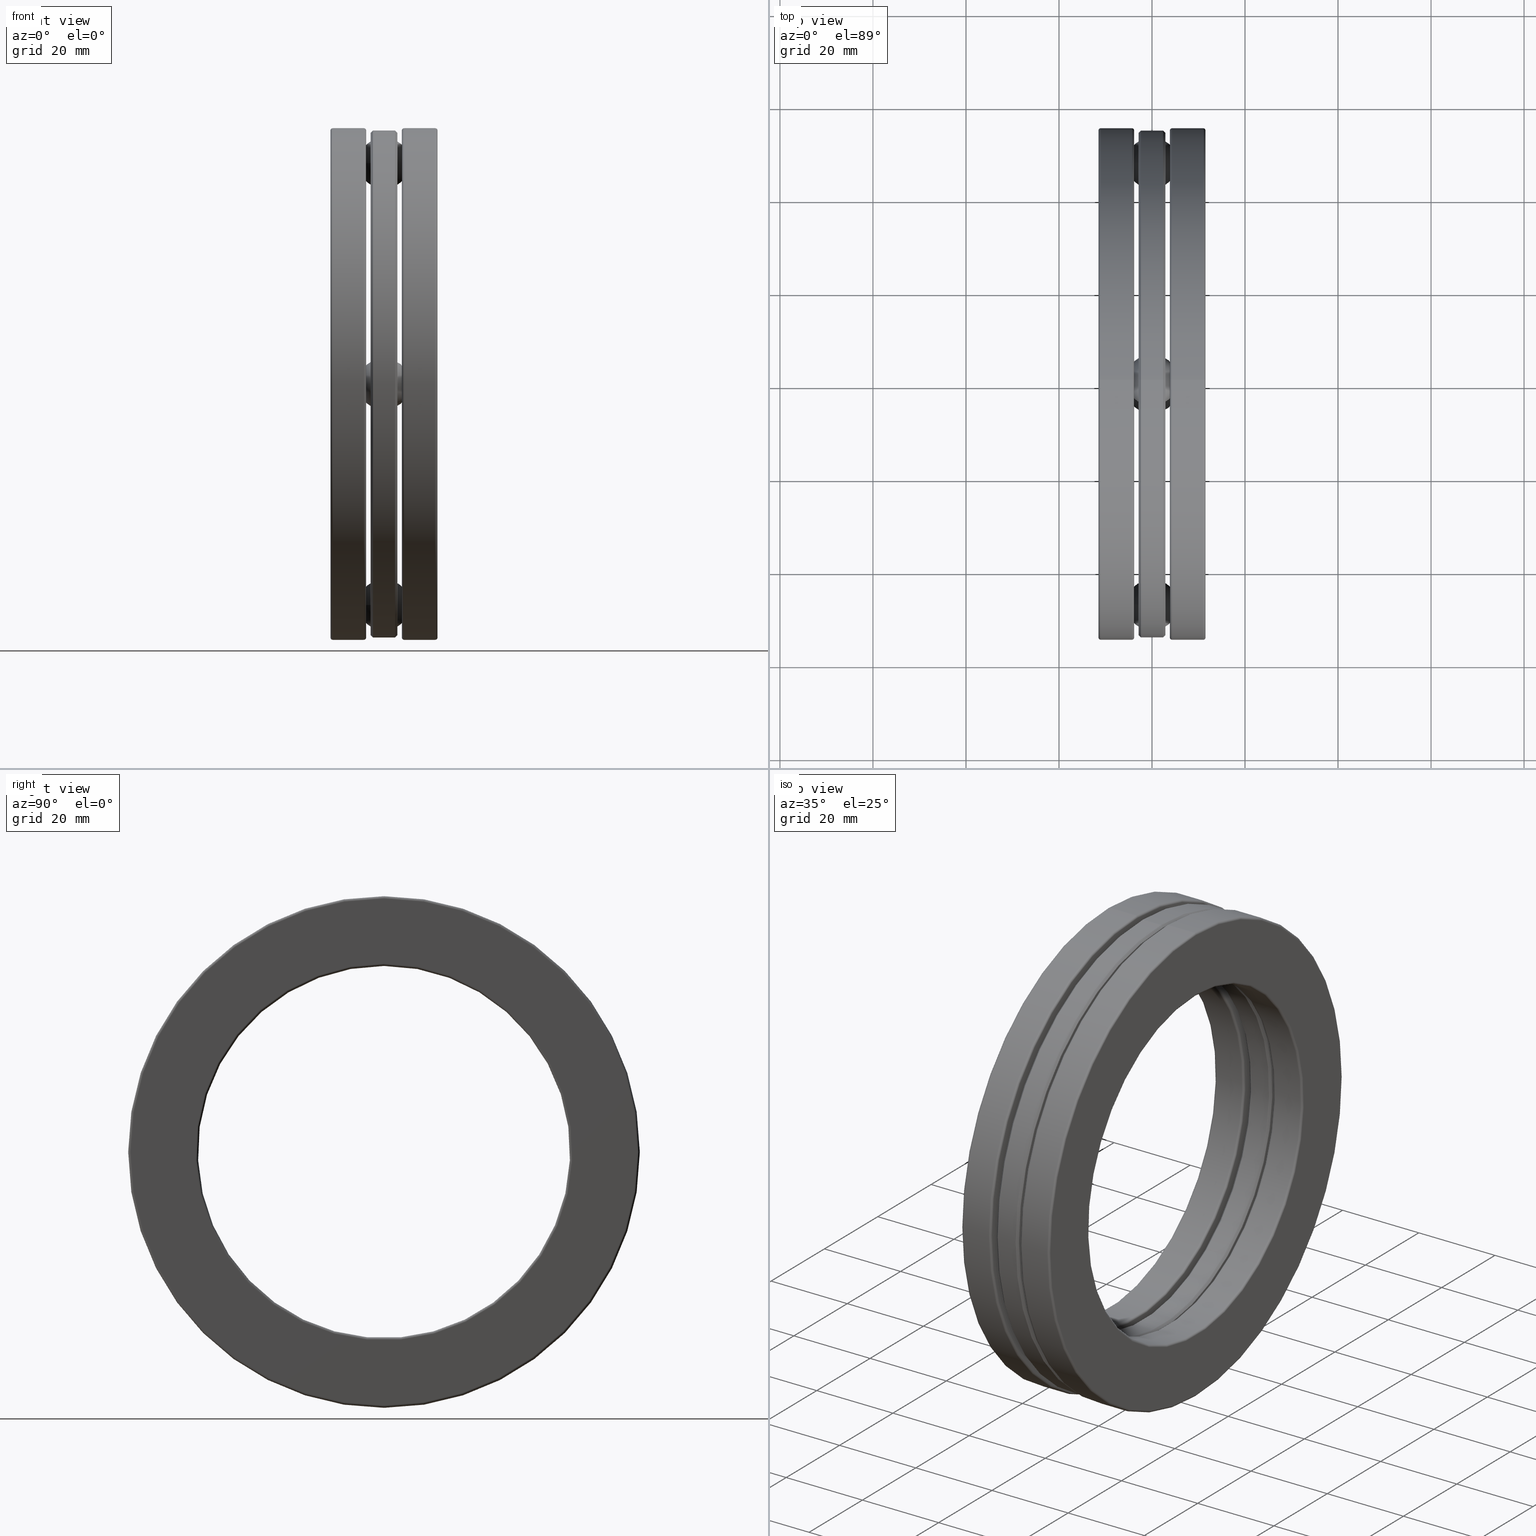
[diagram: canonical four-view strip — front | top / right | iso, engineering-drawing reading convention]
A machine part, canonical four-view strip (front | top / right | iso — engineering-drawing reading convention). The complete STEP part file that produces these views, byte-faithful:
ISO-10303-21;
HEADER;
FILE_DESCRIPTION (( 'STEP AP203' ),
    '1' );
FILE_NAME ('2916-ABB.step',
    '2017-03-07T16:43:08',
    ( '' ),
    ( '' ),
    'SwSTEP 2.0',
    'SolidWorks 2017',
    '' );
FILE_SCHEMA (( 'CONFIG_CONTROL_DESIGN' ));
ENDSEC;

DATA;
#1 = VERTEX_POINT ( 'NONE', #294 ) ;
#2 = EDGE_LOOP ( 'NONE', ( #406 ) ) ;
#3 = CALENDAR_DATE ( 2017, 7, 3 ) ;
#4 = DIRECTION ( 'NONE',  ( -1.000000000000000000, -0.0000000000000000000, -0.0000000000000000000 ) ) ;
#5 = EDGE_LOOP ( 'NONE', ( #228 ) ) ;
#6 = CLOSED_SHELL ( 'NONE', ( #647 ) ) ;
#7 = ADVANCED_FACE ( 'NONE', ( #489, #324 ), #598, .T. ) ;
#8 = CLOSED_SHELL ( 'NONE', ( #453, #729, #709, #36, #295, #790, #533, #573, #677, #27 ) ) ;
#9 = CARTESIAN_POINT ( 'NONE',  ( 0.0000000000000000000, 0.0000000000000000000, 0.0000000000000000000 ) ) ;
#10 = DIRECTION ( 'NONE',  ( -1.000000000000000000, 0.0000000000000000000, 0.0000000000000000000 ) ) ;
#11 = CARTESIAN_POINT ( 'NONE',  ( 1.095466440302333300E-016, 0.0000000000000000000, 0.0000000000000000000 ) ) ;
#12 = DIRECTION ( 'NONE',  ( 0.0000000000000000000, 0.0000000000000000000, 1.000000000000000000 ) ) ;
#13 = DIRECTION ( 'NONE',  ( -1.000000000000000000, -0.0000000000000000000, -0.0000000000000000000 ) ) ;
#14 = AXIS2_PLACEMENT_3D ( 'NONE', #370, #130, #263 ) ;
#15 = PERSON_AND_ORGANIZATION_ROLE ( 'creator' ) ;
#16 = CARTESIAN_POINT ( 'NONE',  ( 0.09325000000000002700, 0.0000000000000000000, 0.0000000000000000000 ) ) ;
#17 = DIRECTION ( 'NONE',  ( 0.0000000000000000000, 0.0000000000000000000, -1.000000000000000000 ) ) ;
#18 = APPROVAL_ROLE ( '' ) ;
#19 = ORIENTED_EDGE ( 'NONE', *, *, #113, .T. ) ;
#20 = LOCAL_TIME ( 11, 43, 8.000000000000000000, #184 ) ;
#21 = AXIS2_PLACEMENT_3D ( 'NONE', #251, #63, #642 ) ;
#22 = EDGE_LOOP ( 'NONE', ( #633 ) ) ;
#23 = CARTESIAN_POINT ( 'NONE',  ( -0.4529999999999999000, 0.0000000000000000000, 0.0000000000000000000 ) ) ;
#24 = CARTESIAN_POINT ( 'NONE',  ( 0.1132499999999999500, 0.0000000000000000000, 0.0000000000000000000 ) ) ;
#25 = EDGE_CURVE ( 'NONE', #222, #222, #256, .T. ) ;
#26 = CARTESIAN_POINT ( 'NONE',  ( -0.4329999999999999400, 0.0000000000000000000, 0.0000000000000000000 ) ) ;
#27 = ADVANCED_FACE ( 'NONE', ( #215, #700 ), #562, .T. ) ;
#28 = ADVANCED_FACE ( 'NONE', ( #423, #161, #807, #528, #376, #508 ), #443, .F. ) ;
#29 = CARTESIAN_POINT ( 'NONE',  ( -0.09325000000000002700, 0.0000000000000000000, 0.0000000000000000000 ) ) ;
#30 = VERTEX_POINT ( 'NONE', #98 ) ;
#31 = ORIENTED_EDGE ( 'NONE', *, *, #72, .T. ) ;
#32 = DIRECTION ( 'NONE',  ( 1.000000000000000000, 0.0000000000000000000, 0.0000000000000000000 ) ) ;
#33 = FACE_OUTER_BOUND ( 'NONE', #787, .T. ) ;
#34 = EDGE_LOOP ( 'NONE', ( #663 ) ) ;
#35 = CARTESIAN_POINT ( 'NONE',  ( 0.1132500000000000200, -1.870250000000000200, 0.2240000000000005300 ) ) ;
#36 = ADVANCED_FACE ( 'NONE', ( #229, #716 ), #521, .T. ) ;
#37 = AXIS2_PLACEMENT_3D ( 'NONE', #820, #438, #768 ) ;
#38 = DIRECTION ( 'NONE',  ( 0.0000000000000000000, 0.0000000000000000000, -1.000000000000000000 ) ) ;
#39 = DIRECTION ( 'NONE',  ( -1.000000000000000000, -0.0000000000000000000, -0.0000000000000000000 ) ) ;
#40 = CARTESIAN_POINT ( 'NONE',  ( -0.09324999999999995800, 0.0000000000000000000, 1.595000000000000000 ) ) ;
#41 = CARTESIAN_POINT ( 'NONE',  ( 1.095466440302333300E-016, 1.958982892191411200E-014, 1.870250000000000200 ) ) ;
#42 = AXIS2_PLACEMENT_3D ( 'NONE', #208, #32, #207 ) ;
#43 = CIRCLE ( 'NONE', #559, 2.028866165477796600 ) ;
#44 = ORIENTED_EDGE ( 'NONE', *, *, #232, .T. ) ;
#45 = FACE_BOUND ( 'NONE', #746, .T. ) ;
#46 = APPROVAL_PERSON_ORGANIZATION ( #740, #95, #375 ) ;
#47 =( GEOMETRIC_REPRESENTATION_CONTEXT ( 3 ) GLOBAL_UNCERTAINTY_ASSIGNED_CONTEXT ( ( #85 ) ) GLOBAL_UNIT_ASSIGNED_CONTEXT ( ( #620, #240, #442 ) ) REPRESENTATION_CONTEXT ( 'NONE', 'WORKASPACE' ) );
#48 = AXIS2_PLACEMENT_3D ( 'NONE', #273, #459, #203 ) ;
#49 = VERTEX_POINT ( 'NONE', #668 ) ;
#50 = CIRCLE ( 'NONE', #379, 1.595000000000000400 ) ;
#51 = EDGE_LOOP ( 'NONE', ( #594 ) ) ;
#52 = EDGE_LOOP ( 'NONE', ( #759 ) ) ;
#53 = CARTESIAN_POINT ( 'NONE',  ( -0.1132499999999999500, 0.2240000000000201300, 1.870249999999998000 ) ) ;
#54 = AXIS2_PLACEMENT_3D ( 'NONE', #318, #764, #635 ) ;
#55 = VERTEX_POINT ( 'NONE', #35 ) ;
#56 = TOROIDAL_SURFACE ( 'NONE', #329, 2.145500000000000600, 0.01999999999999968500 ) ;
#57 = DATE_AND_TIME ( #3, #224 ) ;
#58 = TOROIDAL_SURFACE ( 'NONE', #304, 2.145500000000000600, 0.02000000000000004200 ) ;
#59 = DIRECTION ( 'NONE',  ( 0.0000000000000000000, 0.0000000000000000000, 1.000000000000000000 ) ) ;
#60 = AXIS2_PLACEMENT_3D ( 'NONE', #711, #480, #514 ) ;
#61 = AXIS2_PLACEMENT_3D ( 'NONE', #183, #495, #629 ) ;
#62 = DIRECTION ( 'NONE',  ( -1.000000000000000000, -0.0000000000000000000, -0.0000000000000000000 ) ) ;
#63 = DIRECTION ( 'NONE',  ( -1.000000000000000000, -0.0000000000000000000, -0.0000000000000000000 ) ) ;
#64 = CIRCLE ( 'NONE', #167, 2.145500000000000200 ) ;
#65 = ORIENTED_EDGE ( 'NONE', *, *, #25, .F. ) ;
#66 = DIRECTION ( 'NONE',  ( 1.000000000000000000, 0.0000000000000000000, 0.0000000000000000000 ) ) ;
#67 = CIRCLE ( 'NONE', #143, 1.711633834522203700 ) ;
#68 = CARTESIAN_POINT ( 'NONE',  ( -0.1132499999999999500, 1.958982892191411200E-014, 1.870250000000000200 ) ) ;
#69 = ORIENTED_EDGE ( 'NONE', *, *, #602, .F. ) ;
#70 = DIRECTION ( 'NONE',  ( 0.0000000000000000000, 0.0000000000000000000, -1.000000000000000000 ) ) ;
#71 = CARTESIAN_POINT ( 'NONE',  ( 0.1510030200000006500, 0.0000000000000000000, 0.0000000000000000000 ) ) ;
#72 = EDGE_CURVE ( 'NONE', #472, #472, #735, .T. ) ;
#73 = DIRECTION ( 'NONE',  ( 0.0000000000000000000, 0.0000000000000000000, 1.000000000000000000 ) ) ;
#74 = AXIS2_PLACEMENT_3D ( 'NONE', #412, #169, #479 ) ;
#75 = ORIENTED_EDGE ( 'NONE', *, *, #628, .F. ) ;
#76 = CIRCLE ( 'NONE', #493, 0.2240000000000005300 ) ;
#77 = PERSON_AND_ORGANIZATION ( #302, #121 ) ;
#78 = EDGE_LOOP ( 'NONE', ( #666 ) ) ;
#79 = DIRECTION ( 'NONE',  ( 1.000000000000000000, 0.0000000000000000000, 0.0000000000000000000 ) ) ;
#80 = CIRCLE ( 'NONE', #90, 0.2240000000000005300 ) ;
#81 = CLOSED_SHELL ( 'NONE', ( #592 ) ) ;
#82 = ORIENTED_EDGE ( 'NONE', *, *, #577, .F. ) ;
#83 = DIRECTION ( 'NONE',  ( 0.0000000000000000000, 0.0000000000000000000, 1.000000000000000000 ) ) ;
#84 = CARTESIAN_POINT ( 'NONE',  ( 0.4530000000000001200, 0.0000000000000000000, 0.0000000000000000000 ) ) ;
#85 = UNCERTAINTY_MEASURE_WITH_UNIT (LENGTH_MEASURE( 1.000000000000000100E-005 ), #620, 'distance_accuracy_value', 'NONE');
#86 = DIRECTION ( 'NONE',  ( -1.000000000000000000, -0.0000000000000000000, -0.0000000000000000000 ) ) ;
#87 = EDGE_LOOP ( 'NONE', ( #569 ) ) ;
#88 = CIRCLE ( 'NONE', #210, 2.145500000000000200 ) ;
#89 = CLOSED_SHELL ( 'NONE', ( #164, #498, #470, #600, #591, #725, #651, #801, #342, #397 ) ) ;
#90 = AXIS2_PLACEMENT_3D ( 'NONE', #571, #4, #578 ) ;
#91 = EDGE_LOOP ( 'NONE', ( #751 ) ) ;
#92 = ORIENTED_EDGE ( 'NONE', *, *, #160, .F. ) ;
#93 = CARTESIAN_POINT ( 'NONE',  ( 0.0000000000000000000, 0.0000000000000000000, 0.0000000000000000000 ) ) ;
#94 = DIRECTION ( 'NONE',  ( -1.000000000000000000, -0.0000000000000000000, -0.0000000000000000000 ) ) ;
#95 = APPROVAL ( #691, 'UNSPECIFIED' ) ;
#96 = ADVANCED_FACE ( 'NONE', ( #784, #292 ), #806, .T. ) ;
#97 = DIRECTION ( 'NONE',  ( -1.000000000000000000, -0.0000000000000000000, -0.0000000000000000000 ) ) ;
#98 = CARTESIAN_POINT ( 'NONE',  ( -0.1710030199999997800, 0.0000000000000000000, 2.165500000000000600 ) ) ;
#99 = DIRECTION ( 'NONE',  ( 0.0000000000000000000, 0.0000000000000000000, 1.000000000000000000 ) ) ;
#100 = VERTEX_POINT ( 'NONE', #793 ) ;
#101 = COORDINATED_UNIVERSAL_TIME_OFFSET ( 5, 0, .BEHIND. ) ;
#102 = CIRCLE ( 'NONE', #731, 2.145500000000000600 ) ;
#103 = ORIENTED_EDGE ( 'NONE', *, *, #454, .T. ) ;
#104 = AXIS2_PLACEMENT_3D ( 'NONE', #322, #62, #766 ) ;
#105 = AXIS2_PLACEMENT_3D ( 'NONE', #9, #191, #449 ) ;
#106 = AXIS2_PLACEMENT_3D ( 'NONE', #261, #200, #648 ) ;
#107 = VERTEX_POINT ( 'NONE', #364 ) ;
#108 = EDGE_LOOP ( 'NONE', ( #336 ) ) ;
#109 = FACE_OUTER_BOUND ( 'NONE', #687, .T. ) ;
#110 = ORIENTED_EDGE ( 'NONE', *, *, #374, .T. ) ;
#111 = EDGE_LOOP ( 'NONE', ( #75 ) ) ;
#112 = CARTESIAN_POINT ( 'NONE',  ( -0.4529999999999999000, 0.0000000000000000000, 2.145500000000001100 ) ) ;
#113 = EDGE_CURVE ( 'NONE', #55, #55, #607, .T. ) ;
#114 = MANIFOLD_SOLID_BREP ( 'Revolve4', #481 ) ;
#115 = ORIENTED_EDGE ( 'NONE', *, *, #741, .T. ) ;
#116 = FACE_OUTER_BOUND ( 'NONE', #174, .T. ) ;
#117 = CARTESIAN_POINT ( 'NONE',  ( -0.4329999999999999400, 0.0000000000000000000, 2.165500000000000600 ) ) ;
#118 = FACE_BOUND ( 'NONE', #34, .T. ) ;
#119 = AXIS2_PLACEMENT_3D ( 'NONE', #532, #611, #289 ) ;
#120 = DIRECTION ( 'NONE',  ( 0.0000000000000000000, 0.0000000000000000000, 1.000000000000000000 ) ) ;
#121 = ORGANIZATION ( 'UNSPECIFIED', 'UNSPECIFIED', '' ) ;
#122 = CIRCLE ( 'NONE', #106, 0.2240000000000005300 ) ;
#123 = EDGE_LOOP ( 'NONE', ( #775 ) ) ;
#124 = DIRECTION ( 'NONE',  ( 0.0000000000000000000, 0.0000000000000000000, 1.000000000000000000 ) ) ;
#125 = AXIS2_PLACEMENT_3D ( 'NONE', #286, #166, #99 ) ;
#126 = AXIS2_PLACEMENT_3D ( 'NONE', #320, #695, #127 ) ;
#127 = DIRECTION ( 'NONE',  ( 0.0000000000000000000, 0.0000000000000000000, -1.000000000000000000 ) ) ;
#128 = DIRECTION ( 'NONE',  ( 0.0000000000000000000, 0.0000000000000000000, -1.000000000000000000 ) ) ;
#129 = DIRECTION ( 'NONE',  ( 0.0000000000000000000, -1.000000000000000000, 3.658724991514629800E-015 ) ) ;
#130 = DIRECTION ( 'NONE',  ( -1.000000000000000000, -0.0000000000000000000, -0.0000000000000000000 ) ) ;
#131 = DIRECTION ( 'NONE',  ( -1.000000000000000000, -0.0000000000000000000, -0.0000000000000000000 ) ) ;
#132 = DIRECTION ( 'NONE',  ( 1.000000000000000000, 0.0000000000000000000, 0.0000000000000000000 ) ) ;
#133 = PRODUCT ( '2916-ABB', '2916-ABB', '', ( #190 ) ) ;
#134 = DIRECTION ( 'NONE',  ( 0.0000000000000000000, 0.0000000000000000000, 1.000000000000000000 ) ) ;
#135 = CIRCLE ( 'NONE', #209, 1.594999999999999800 ) ;
#136 = FACE_OUTER_BOUND ( 'NONE', #632, .T. ) ;
#137 = COORDINATED_UNIVERSAL_TIME_OFFSET ( 5, 0, .BEHIND. ) ;
#138 = FACE_BOUND ( 'NONE', #359, .T. ) ;
#139 = ADVANCED_FACE ( 'NONE', ( #227, #760 ), #430, .F. ) ;
#140 = EDGE_LOOP ( 'NONE', ( #31 ) ) ;
#141 = ADVANCED_FACE ( 'NONE', ( ), #278, .T. ) ;
#142 = DIRECTION ( 'NONE',  ( -1.000000000000000000, -0.0000000000000000000, -0.0000000000000000000 ) ) ;
#143 = AXIS2_PLACEMENT_3D ( 'NONE', #515, #823, #134 ) ;
#144 = DIRECTION ( 'NONE',  ( 0.0000000000000000000, 0.0000000000000000000, 1.000000000000000000 ) ) ;
#145 = DIRECTION ( 'NONE',  ( 0.0000000000000000000, 0.0000000000000000000, 1.000000000000000000 ) ) ;
#146 = AXIS2_PLACEMENT_3D ( 'NONE', #189, #317, #195 ) ;
#147 = EDGE_CURVE ( 'NONE', #177, #177, #335, .T. ) ;
#148 = CIRCLE ( 'NONE', #523, 0.2240000000000005300 ) ;
#149 = ORIENTED_EDGE ( 'NONE', *, *, #355, .T. ) ;
#150 = TOROIDAL_SURFACE ( 'NONE', #338, 1.870250000000000200, 0.2190000000000000300 ) ;
#151 = EDGE_LOOP ( 'NONE', ( #487 ) ) ;
#152 = ORIENTED_EDGE ( 'NONE', *, *, #72, .F. ) ;
#153 = PERSON_AND_ORGANIZATION_ROLE ( 'classification_officer' ) ;
#154 = ADVANCED_FACE ( 'NONE', ( #475, #597 ), #813, .F. ) ;
#155 = DIRECTION ( 'NONE',  ( 0.0000000000000000000, 0.0000000000000000000, 1.000000000000000000 ) ) ;
#156 = ADVANCED_FACE ( 'NONE', ( #713, #743 ), #455, .F. ) ;
#157 = DIRECTION ( 'NONE',  ( -1.000000000000000000, -0.0000000000000000000, -0.0000000000000000000 ) ) ;
#158 = VERTEX_POINT ( 'NONE', #221 ) ;
#159 = CIRCLE ( 'NONE', #185, 2.028866165477796200 ) ;
#160 = EDGE_CURVE ( 'NONE', #708, #708, #753, .T. ) ;
#161 = FACE_BOUND ( 'NONE', #212, .T. ) ;
#162 = ORIENTED_EDGE ( 'NONE', *, *, #147, .F. ) ;
#163 = CARTESIAN_POINT ( 'NONE',  ( 1.095466440302333300E-016, -1.870250000000000200, 0.0000000000000000000 ) ) ;
#164 = ADVANCED_FACE ( 'NONE', ( #654, #673 ), #420, .F. ) ;
#165 = CARTESIAN_POINT ( 'NONE',  ( 0.4530000000000001200, 0.0000000000000000000, 1.595000000000000000 ) ) ;
#166 = DIRECTION ( 'NONE',  ( -1.000000000000000000, -0.0000000000000000000, -0.0000000000000000000 ) ) ;
#167 = AXIS2_PLACEMENT_3D ( 'NONE', #29, #97, #226 ) ;
#168 = CARTESIAN_POINT ( 'NONE',  ( 0.1132500000000000200, 1.958982892191411200E-014, 1.870250000000000200 ) ) ;
#169 = DIRECTION ( 'NONE',  ( -1.000000000000000000, -0.0000000000000000000, -0.0000000000000000000 ) ) ;
#170 = TOROIDAL_SURFACE ( 'NONE', #175, 1.594999999999999800, 0.01999999999999988900 ) ;
#171 = EDGE_LOOP ( 'NONE', ( #388 ) ) ;
#172 = FACE_OUTER_BOUND ( 'NONE', #22, .T. ) ;
#173 = EDGE_LOOP ( 'NONE', ( #149 ) ) ;
#174 = EDGE_LOOP ( 'NONE', ( #301 ) ) ;
#175 = AXIS2_PLACEMENT_3D ( 'NONE', #26, #403, #339 ) ;
#176 = AXIS2_PLACEMENT_3D ( 'NONE', #702, #381, #327 ) ;
#177 = VERTEX_POINT ( 'NONE', #720 ) ;
#178 = EDGE_LOOP ( 'NONE', ( #808 ) ) ;
#179 = SECURITY_CLASSIFICATION ( '', '', #461 ) ;
#180 = EDGE_LOOP ( 'NONE', ( #279 ) ) ;
#181 = EDGE_LOOP ( 'NONE', ( #334 ) ) ;
#182 = ORIENTED_EDGE ( 'NONE', *, *, #545, .T. ) ;
#183 = CARTESIAN_POINT ( 'NONE',  ( -0.1132499999999999500, 0.0000000000000000000, 0.0000000000000000000 ) ) ;
#184 = COORDINATED_UNIVERSAL_TIME_OFFSET ( 5, 0, .BEHIND. ) ;
#185 = AXIS2_PLACEMENT_3D ( 'NONE', #589, #525, #145 ) ;
#186 = EDGE_LOOP ( 'NONE', ( #817 ) ) ;
#187 = EDGE_CURVE ( 'NONE', #593, #593, #552, .T. ) ;
#188 = CARTESIAN_POINT ( 'NONE',  ( 0.0000000000000000000, 0.0000000000000000000, 0.0000000000000000000 ) ) ;
#189 = CARTESIAN_POINT ( 'NONE',  ( -0.1132500000000000500, 0.0000000000000000000, 0.0000000000000000000 ) ) ;
#190 = MECHANICAL_CONTEXT ( 'NONE', #510, 'mechanical' ) ;
#191 = DIRECTION ( 'NONE',  ( -1.000000000000000000, -0.0000000000000000000, -0.0000000000000000000 ) ) ;
#192 = VERTEX_POINT ( 'NONE', #413 ) ;
#193 = FACE_OUTER_BOUND ( 'NONE', #441, .T. ) ;
#194 = DATE_AND_TIME ( #583, #527 ) ;
#195 = DIRECTION ( 'NONE',  ( 0.0000000000000000000, 0.0000000000000000000, -1.000000000000000000 ) ) ;
#196 = EDGE_LOOP ( 'NONE', ( #182 ) ) ;
#197 = ORIENTED_EDGE ( 'NONE', *, *, #326, .T. ) ;
#198 = CARTESIAN_POINT ( 'NONE',  ( -0.1510030199999997900, 0.0000000000000000000, 0.0000000000000000000 ) ) ;
#199 = AXIS2_PLACEMENT_3D ( 'NONE', #507, #131, #502 ) ;
#200 = DIRECTION ( 'NONE',  ( 1.000000000000000000, -0.0000000000000000000, 0.0000000000000000000 ) ) ;
#201 = DIRECTION ( 'NONE',  ( 0.0000000000000000000, 0.0000000000000000000, 1.000000000000000000 ) ) ;
#202 = PLANE ( 'NONE',  #645 ) ;
#203 = DIRECTION ( 'NONE',  ( 0.0000000000000000000, -1.000000000000000000, 3.658724991514629800E-015 ) ) ;
#204 = CARTESIAN_POINT ( 'NONE',  ( 0.4330000000000008300, 0.0000000000000000000, 0.0000000000000000000 ) ) ;
#205 = FACE_BOUND ( 'NONE', #554, .T. ) ;
#206 = ORIENTED_EDGE ( 'NONE', *, *, #588, .T. ) ;
#207 = DIRECTION ( 'NONE',  ( 0.0000000000000000000, 1.000000000000000000, -1.097617497454388900E-014 ) ) ;
#208 = CARTESIAN_POINT ( 'NONE',  ( -0.4530393700787400700, 1.958982892191411200E-014, 1.870250000000000200 ) ) ;
#209 = AXIS2_PLACEMENT_3D ( 'NONE', #23, #718, #274 ) ;
#210 = AXIS2_PLACEMENT_3D ( 'NONE', #769, #517, #706 ) ;
#211 = FACE_OUTER_BOUND ( 'NONE', #173, .T. ) ;
#212 = EDGE_LOOP ( 'NONE', ( #366 ) ) ;
#213 = DIRECTION ( 'NONE',  ( 0.0000000000000000000, 0.0000000000000000000, 1.000000000000000000 ) ) ;
#214 = FACE_OUTER_BOUND ( 'NONE', #737, .T. ) ;
#215 = FACE_BOUND ( 'NONE', #181, .T. ) ;
#216 = ORIENTED_EDGE ( 'NONE', *, *, #741, .F. ) ;
#217 = EDGE_LOOP ( 'NONE', ( #257 ) ) ;
#218 = DIRECTION ( 'NONE',  ( 0.0000000000000000000, 0.0000000000000000000, 1.000000000000000000 ) ) ;
#219 = CC_DESIGN_DATE_AND_TIME_ASSIGNMENT ( #194, #596, ( #179 ) ) ;
#220 = CARTESIAN_POINT ( 'NONE',  ( 0.1510030200000006500, 0.0000000000000000000, 2.028866165477796200 ) ) ;
#221 = CARTESIAN_POINT ( 'NONE',  ( -0.1510030199999997900, 0.0000000000000000000, 1.595000000000000400 ) ) ;
#222 = VERTEX_POINT ( 'NONE', #265 ) ;
#223 = SPHERICAL_SURFACE ( 'NONE', #362, 0.2190000000000003100 ) ;
#224 = LOCAL_TIME ( 11, 43, 8.000000000000000000, #440 ) ;
#225 = ORIENTED_EDGE ( 'NONE', *, *, #524, .T. ) ;
#226 = DIRECTION ( 'NONE',  ( 0.0000000000000000000, 0.0000000000000000000, 1.000000000000000000 ) ) ;
#227 = FACE_OUTER_BOUND ( 'NONE', #293, .T. ) ;
#228 = ORIENTED_EDGE ( 'NONE', *, *, #560, .F. ) ;
#229 = FACE_OUTER_BOUND ( 'NONE', #424, .T. ) ;
#230 = DIRECTION ( 'NONE',  ( 0.0000000000000000000, 0.0000000000000000000, 1.000000000000000000 ) ) ;
#231 = AXIS2_PLACEMENT_3D ( 'NONE', #408, #94, #658 ) ;
#232 = EDGE_CURVE ( 'NONE', #192, #192, #776, .T. ) ;
#233 = MANIFOLD_SOLID_BREP ( 'Revolve1', #8 ) ;
#234 = CIRCLE ( 'NONE', #262, 0.2240000000000005300 ) ;
#235 = FACE_OUTER_BOUND ( 'NONE', #542, .T. ) ;
#236 = APPROVAL_PERSON_ORGANIZATION ( #566, #603, #779 ) ;
#237 = EDGE_LOOP ( 'NONE', ( #392 ) ) ;
#238 = ORIENTED_EDGE ( 'NONE', *, *, #494, .F. ) ;
#239 = EDGE_LOOP ( 'NONE', ( #580 ) ) ;
#240 =( NAMED_UNIT ( * ) PLANE_ANGLE_UNIT ( ) SI_UNIT ( $, .RADIAN. ) );
#241 = CARTESIAN_POINT ( 'NONE',  ( 0.0000000000000000000, 0.0000000000000000000, 0.0000000000000000000 ) ) ;
#242 = AXIS2_PLACEMENT_3D ( 'NONE', #818, #66, #690 ) ;
#243 = VERTEX_POINT ( 'NONE', #685 ) ;
#244 = AXIS2_PLACEMENT_3D ( 'NONE', #797, #610, #38 ) ;
#245 = SPHERICAL_SURFACE ( 'NONE', #426, 0.2190000000000003100 ) ;
#246 = CALENDAR_DATE ( 2017, 7, 3 ) ;
#247 = CONICAL_SURFACE ( 'NONE', #276, 1.615000000000000200, 0.7853981633974491700 ) ;
#248 = EDGE_LOOP ( 'NONE', ( #103 ) ) ;
#249 = ADVANCED_FACE ( 'NONE', ( ), #254, .T. ) ;
#250 = DIRECTION ( 'NONE',  ( -1.000000000000000000, -0.0000000000000000000, -0.0000000000000000000 ) ) ;
#251 = CARTESIAN_POINT ( 'NONE',  ( -0.1710030199999997800, 0.0000000000000000000, 0.0000000000000000000 ) ) ;
#252 = VERTEX_POINT ( 'NONE', #605 ) ;
#253 = CARTESIAN_POINT ( 'NONE',  ( 1.095466440302333300E-016, 0.0000000000000000000, 0.0000000000000000000 ) ) ;
#254 = SPHERICAL_SURFACE ( 'NONE', #258, 0.2190000000000003100 ) ;
#255 = DIRECTION ( 'NONE',  ( 1.000000000000000000, 0.0000000000000000000, 0.0000000000000000000 ) ) ;
#256 = CIRCLE ( 'NONE', #637, 1.615000000000000200 ) ;
#257 = ORIENTED_EDGE ( 'NONE', *, *, #160, .T. ) ;
#258 = AXIS2_PLACEMENT_3D ( 'NONE', #448, #201, #649 ) ;
#259 = DIRECTION ( 'NONE',  ( -1.000000000000000000, -0.0000000000000000000, -0.0000000000000000000 ) ) ;
#260 = PLANE ( 'NONE',  #755 ) ;
#261 = CARTESIAN_POINT ( 'NONE',  ( 0.1132500000000000200, 1.870250000000000200, 0.0000000000000000000 ) ) ;
#262 = AXIS2_PLACEMENT_3D ( 'NONE', #68, #636, #446 ) ;
#263 = DIRECTION ( 'NONE',  ( 0.0000000000000000000, 0.0000000000000000000, -1.000000000000000000 ) ) ;
#264 = DIRECTION ( 'NONE',  ( -1.000000000000000000, -0.0000000000000000000, -0.0000000000000000000 ) ) ;
#265 = CARTESIAN_POINT ( 'NONE',  ( -0.1132499999999999500, 0.0000000000000000000, 1.615000000000000200 ) ) ;
#266 = VERTEX_POINT ( 'NONE', #53 ) ;
#267 = CIRCLE ( 'NONE', #821, 2.165500000000000600 ) ;
#268 = PERSON_AND_ORGANIZATION ( #302, #121 ) ;
#269 = CARTESIAN_POINT ( 'NONE',  ( 0.1132500000000000200, 2.272637991790981200E-017, 0.0000000000000000000 ) ) ;
#270 = FACE_OUTER_BOUND ( 'NONE', #499, .T. ) ;
#271 = ORIENTED_EDGE ( 'NONE', *, *, #628, .T. ) ;
#272 = CARTESIAN_POINT ( 'NONE',  ( -0.1132500000000000500, 0.0000000000000000000, 0.0000000000000000000 ) ) ;
#273 = CARTESIAN_POINT ( 'NONE',  ( -0.4530393700787400700, -6.529942973971370400E-015, -1.870250000000000200 ) ) ;
#274 = DIRECTION ( 'NONE',  ( 0.0000000000000000000, 0.0000000000000000000, 1.000000000000000000 ) ) ;
#275 = CC_DESIGN_PERSON_AND_ORGANIZATION_ASSIGNMENT ( #782, #382, ( #133 ) ) ;
#276 = AXIS2_PLACEMENT_3D ( 'NONE', #501, #445, #70 ) ;
#277 = DIRECTION ( 'NONE',  ( -1.000000000000000000, -0.0000000000000000000, -0.0000000000000000000 ) ) ;
#278 = SPHERICAL_SURFACE ( 'NONE', #37, 0.2190000000000003100 ) ;
#279 = ORIENTED_EDGE ( 'NONE', *, *, #187, .F. ) ;
#280 = ORIENTED_EDGE ( 'NONE', *, *, #626, .T. ) ;
#281 = DIRECTION ( 'NONE',  ( -1.000000000000000000, -0.0000000000000000000, -0.0000000000000000000 ) ) ;
#282 = PERSON_AND_ORGANIZATION_ROLE ( 'creator' ) ;
#283 = DIMENSIONAL_EXPONENTS ( 1.000000000000000000, 0.0000000000000000000, 0.0000000000000000000, 0.0000000000000000000, 0.0000000000000000000, 0.0000000000000000000, 0.0000000000000000000 ) ;
#284 = CARTESIAN_POINT ( 'NONE',  ( 0.09324999999999998600, 0.0000000000000000000, 2.145500000000000200 ) ) ;
#285 = AXIS2_PLACEMENT_3D ( 'NONE', #824, #500, #124 ) ;
#286 = CARTESIAN_POINT ( 'NONE',  ( -0.1710030199999998100, 0.0000000000000000000, 0.0000000000000000000 ) ) ;
#287 = VERTEX_POINT ( 'NONE', #347 ) ;
#288 = EDGE_LOOP ( 'NONE', ( #710 ) ) ;
#289 = DIRECTION ( 'NONE',  ( 0.0000000000000000000, 0.0000000000000000000, 1.000000000000000000 ) ) ;
#290 = CYLINDRICAL_SURFACE ( 'NONE', #586, 1.575000000000000000 ) ;
#291 = EDGE_LOOP ( 'NONE', ( #19 ) ) ;
#292 = FACE_OUTER_BOUND ( 'NONE', #78, .T. ) ;
#293 = EDGE_LOOP ( 'NONE', ( #377 ) ) ;
#294 = CARTESIAN_POINT ( 'NONE',  ( 0.4530000000000001200, 0.0000000000000000000, 2.145500000000000600 ) ) ;
#295 = ADVANCED_FACE ( 'NONE', ( #565, #172 ), #819, .T. ) ;
#296 = DIRECTION ( 'NONE',  ( 0.0000000000000000000, 0.0000000000000000000, -1.000000000000000000 ) ) ;
#297 = AXIS2_PLACEMENT_3D ( 'NONE', #765, #704, #129 ) ;
#298 = LENGTH_MEASURE_WITH_UNIT ( LENGTH_MEASURE( 0.02539999999999999900 ), #367 );
#299 = ORIENTED_EDGE ( 'NONE', *, *, #539, .F. ) ;
#300 = FACE_OUTER_BOUND ( 'NONE', #391, .T. ) ;
#301 = ORIENTED_EDGE ( 'NONE', *, *, #469, .T. ) ;
#302 = PERSON ( 'UNSPECIFIED', 'UNSPECIFIED', 'UNSPECIFIED', ('UNSPECIFIED'), ('UNSPECIFIED'), ('UNSPECIFIED') ) ;
#303 = PRODUCT_DEFINITION ( 'UNKNOWN', '', #306, #675 ) ;
#304 = AXIS2_PLACEMENT_3D ( 'NONE', #518, #264, #505 ) ;
#305 = ADVANCED_BREP_SHAPE_REPRESENTATION ( '2916-ABB', ( #233, #546, #114, #422, #319, #619, #794, #804 ), #47 ) ;
#306 = PRODUCT_DEFINITION_FORMATION_WITH_SPECIFIED_SOURCE ( 'ANY', '', #133, .NOT_KNOWN. ) ;
#307 = FACE_BOUND ( 'NONE', #346, .T. ) ;
#308 = FACE_OUTER_BOUND ( 'NONE', #622, .T. ) ;
#309 = APPROVAL_DATE_TIME ( #414, #95 ) ;
#310 = FACE_OUTER_BOUND ( 'NONE', #786, .T. ) ;
#311 = EDGE_LOOP ( 'NONE', ( #325 ) ) ;
#312 = PLANE ( 'NONE',  #417 ) ;
#313 = CC_DESIGN_APPROVAL ( #95, ( #303 ) ) ;
#314 = CIRCLE ( 'NONE', #752, 2.165500000000000600 ) ;
#315 = EDGE_CURVE ( 'NONE', #428, #428, #538, .T. ) ;
#316 = ORIENTED_EDGE ( 'NONE', *, *, #315, .T. ) ;
#317 = DIRECTION ( 'NONE',  ( 1.000000000000000000, 0.0000000000000000000, 0.0000000000000000000 ) ) ;
#318 = CARTESIAN_POINT ( 'NONE',  ( 0.4330000000000008300, 0.0000000000000000000, 0.0000000000000000000 ) ) ;
#319 = MANIFOLD_SOLID_BREP ( 'CirPattern4[2]', #81 ) ;
#320 = CARTESIAN_POINT ( 'NONE',  ( 0.1510030200000006500, 0.0000000000000000000, 0.0000000000000000000 ) ) ;
#321 = CYLINDRICAL_SURFACE ( 'NONE', #244, 0.2240000000000005300 ) ;
#322 = CARTESIAN_POINT ( 'NONE',  ( 0.0000000000000000000, 0.0000000000000000000, 0.0000000000000000000 ) ) ;
#323 = SHAPE_DEFINITION_REPRESENTATION ( #777, #305 ) ;
#324 = FACE_OUTER_BOUND ( 'NONE', #543, .T. ) ;
#325 = ORIENTED_EDGE ( 'NONE', *, *, #539, .T. ) ;
#326 = EDGE_CURVE ( 'NONE', #30, #30, #314, .T. ) ;
#327 = DIRECTION ( 'NONE',  ( 0.0000000000000000000, 0.0000000000000000000, 1.000000000000000000 ) ) ;
#328 = DIRECTION ( 'NONE',  ( 0.0000000000000000000, 0.0000000000000000000, 1.000000000000000000 ) ) ;
#329 = AXIS2_PLACEMENT_3D ( 'NONE', #727, #343, #409 ) ;
#330 = DIRECTION ( 'NONE',  ( 0.0000000000000000000, 0.0000000000000000000, 1.000000000000000000 ) ) ;
#331 = DIRECTION ( 'NONE',  ( 0.0000000000000000000, 0.0000000000000000000, 1.000000000000000000 ) ) ;
#332 = ADVANCED_FACE ( 'NONE', ( #404, #235 ), #365, .F. ) ;
#333 = DIRECTION ( 'NONE',  ( 0.0000000000000000000, 0.0000000000000000000, 1.000000000000000000 ) ) ;
#334 = ORIENTED_EDGE ( 'NONE', *, *, #494, .T. ) ;
#335 = CIRCLE ( 'NONE', #199, 1.575000000000000000 ) ;
#336 = ORIENTED_EDGE ( 'NONE', *, *, #626, .F. ) ;
#337 = DIRECTION ( 'NONE',  ( -1.000000000000000000, -0.0000000000000000000, -0.0000000000000000000 ) ) ;
#338 = AXIS2_PLACEMENT_3D ( 'NONE', #11, #384, #73 ) ;
#339 = DIRECTION ( 'NONE',  ( 0.0000000000000000000, 0.0000000000000000000, 1.000000000000000000 ) ) ;
#340 = CIRCLE ( 'NONE', #714, 2.145500000000000600 ) ;
#341 = CIRCLE ( 'NONE', #435, 2.125500000000000200 ) ;
#342 = ADVANCED_FACE ( 'NONE', ( #300, #482 ), #58, .T. ) ;
#343 = DIRECTION ( 'NONE',  ( -1.000000000000000000, -0.0000000000000000000, -0.0000000000000000000 ) ) ;
#344 = ORIENTED_EDGE ( 'NONE', *, *, #524, .F. ) ;
#345 = CC_DESIGN_APPROVAL ( #547, ( #179 ) ) ;
#346 = EDGE_LOOP ( 'NONE', ( #644 ) ) ;
#347 = CARTESIAN_POINT ( 'NONE',  ( -0.1710030199999997800, 0.0000000000000000000, 1.575000000000000000 ) ) ;
#348 = CARTESIAN_POINT ( 'NONE',  ( -0.1510030199999997900, 0.0000000000000000000, 0.0000000000000000000 ) ) ;
#349 = CARTESIAN_POINT ( 'NONE',  ( -0.1132499999999999500, -1.870250000000000200, 0.2240000000000005300 ) ) ;
#350 = DIRECTION ( 'NONE',  ( 0.0000000000000000000, -1.000000000000000000, 1.047444401652940000E-014 ) ) ;
#351 = ORIENTED_EDGE ( 'NONE', *, *, #436, .T. ) ;
#352 = FACE_BOUND ( 'NONE', #5, .T. ) ;
#353 = ORIENTED_EDGE ( 'NONE', *, *, #469, .F. ) ;
#354 = CC_DESIGN_DATE_AND_TIME_ASSIGNMENT ( #744, #656, ( #303 ) ) ;
#355 = EDGE_CURVE ( 'NONE', #486, #486, #643, .T. ) ;
#356 = VERTEX_POINT ( 'NONE', #477 ) ;
#357 = TOROIDAL_SURFACE ( 'NONE', #119, 1.595000000000000000, 0.01999999999999968500 ) ;
#358 = EDGE_LOOP ( 'NONE', ( #316 ) ) ;
#359 = EDGE_LOOP ( 'NONE', ( #299 ) ) ;
#360 = EDGE_CURVE ( 'NONE', #783, #783, #631, .T. ) ;
#361 = CARTESIAN_POINT ( 'NONE',  ( 0.1510030200000006500, 0.0000000000000000000, 2.145500000000000600 ) ) ;
#362 = AXIS2_PLACEMENT_3D ( 'NONE', #41, #350, #667 ) ;
#363 = FACE_OUTER_BOUND ( 'NONE', #87, .T. ) ;
#364 = CARTESIAN_POINT ( 'NONE',  ( 0.1510030200000006500, 0.0000000000000000000, 1.711633834522204000 ) ) ;
#365 = CYLINDRICAL_SURFACE ( 'NONE', #48, 0.2240000000000005300 ) ;
#366 = ORIENTED_EDGE ( 'NONE', *, *, #485, .F. ) ;
#367 =( LENGTH_UNIT ( ) NAMED_UNIT ( * ) SI_UNIT ( $, .METRE. ) );
#368 = DIRECTION ( 'NONE',  ( -1.000000000000000000, -0.0000000000000000000, -0.0000000000000000000 ) ) ;
#369 = DIRECTION ( 'NONE',  ( 1.000000000000000000, 0.0000000000000000000, 0.0000000000000000000 ) ) ;
#370 = CARTESIAN_POINT ( 'NONE',  ( -0.1132499999999999500, 1.870250000000000200, 0.0000000000000000000 ) ) ;
#371 = VERTEX_POINT ( 'NONE', #540 ) ;
#372 = CONICAL_SURFACE ( 'NONE', #146, 2.125500000000000200, 0.7853981633974491700 ) ;
#373 = EDGE_LOOP ( 'NONE', ( #698 ) ) ;
#374 = EDGE_CURVE ( 'NONE', #252, #252, #67, .T. ) ;
#375 = APPROVAL_ROLE ( '' ) ;
#376 = FACE_BOUND ( 'NONE', #476, .T. ) ;
#377 = ORIENTED_EDGE ( 'NONE', *, *, #232, .F. ) ;
#378 = PLANE ( 'NONE',  #126 ) ;
#379 = AXIS2_PLACEMENT_3D ( 'NONE', #396, #781, #650 ) ;
#380 = DIRECTION ( 'NONE',  ( -0.0000000000000000000, -0.0000000000000000000, -1.000000000000000000 ) ) ;
#381 = DIRECTION ( 'NONE',  ( -1.000000000000000000, -0.0000000000000000000, -0.0000000000000000000 ) ) ;
#382 = PERSON_AND_ORGANIZATION_ROLE ( 'design_owner' ) ;
#383 = DIRECTION ( 'NONE',  ( 0.0000000000000000000, 0.0000000000000000000, 1.000000000000000000 ) ) ;
#384 = DIRECTION ( 'NONE',  ( -1.000000000000000000, -0.0000000000000000000, -0.0000000000000000000 ) ) ;
#385 = FACE_OUTER_BOUND ( 'NONE', #407, .T. ) ;
#386 = DIRECTION ( 'NONE',  ( 0.0000000000000000000, 0.0000000000000000000, 1.000000000000000000 ) ) ;
#387 = CIRCLE ( 'NONE', #74, 1.575000000000000000 ) ;
#388 = ORIENTED_EDGE ( 'NONE', *, *, #809, .F. ) ;
#389 = TOROIDAL_SURFACE ( 'NONE', #683, 1.595000000000000000, 0.02000000000000004200 ) ;
#390 = ADVANCED_FACE ( 'NONE', ( #584, #688 ), #247, .F. ) ;
#391 = EDGE_LOOP ( 'NONE', ( #748 ) ) ;
#392 = ORIENTED_EDGE ( 'NONE', *, *, #485, .T. ) ;
#393 = ORIENTED_EDGE ( 'NONE', *, *, #25, .T. ) ;
#394 = DIRECTION ( 'NONE',  ( -1.000000000000000000, -0.0000000000000000000, -0.0000000000000000000 ) ) ;
#395 = APPROVAL_STATUS ( 'not_yet_approved' ) ;
#396 = CARTESIAN_POINT ( 'NONE',  ( -0.1510030199999997900, 0.0000000000000000000, 0.0000000000000000000 ) ) ;
#397 = ADVANCED_FACE ( 'NONE', ( #138, #497 ), #378, .F. ) ;
#398 = CC_DESIGN_APPROVAL ( #603, ( #306 ) ) ;
#399 = CARTESIAN_POINT ( 'NONE',  ( 0.1710030200000006700, 0.0000000000000000000, 2.165500000000000600 ) ) ;
#400 = EDGE_CURVE ( 'NONE', #287, #287, #415, .T. ) ;
#401 = CARTESIAN_POINT ( 'NONE',  ( 0.1510030200000006500, 0.0000000000000000000, 0.0000000000000000000 ) ) ;
#402 = FACE_OUTER_BOUND ( 'NONE', #585, .T. ) ;
#403 = DIRECTION ( 'NONE',  ( -1.000000000000000000, -0.0000000000000000000, -0.0000000000000000000 ) ) ;
#404 = FACE_OUTER_BOUND ( 'NONE', #553, .T. ) ;
#405 = CALENDAR_DATE ( 2017, 7, 3 ) ;
#406 = ORIENTED_EDGE ( 'NONE', *, *, #634, .T. ) ;
#407 = EDGE_LOOP ( 'NONE', ( #206 ) ) ;
#408 = CARTESIAN_POINT ( 'NONE',  ( 0.1132500000000000500, 0.0000000000000000000, 0.0000000000000000000 ) ) ;
#409 = DIRECTION ( 'NONE',  ( 0.0000000000000000000, 0.0000000000000000000, 1.000000000000000000 ) ) ;
#410 = CARTESIAN_POINT ( 'NONE',  ( -0.1132500000000000500, 0.0000000000000000000, 2.125500000000000200 ) ) ;
#411 = EDGE_CURVE ( 'NONE', #356, #356, #80, .T. ) ;
#412 = CARTESIAN_POINT ( 'NONE',  ( -0.4329999999999999400, 0.0000000000000000000, 0.0000000000000000000 ) ) ;
#413 = CARTESIAN_POINT ( 'NONE',  ( 0.09325000000000002700, 0.0000000000000000000, 1.595000000000000000 ) ) ;
#414 = DATE_AND_TIME ( #796, #20 ) ;
#415 = CIRCLE ( 'NONE', #21, 1.575000000000000000 ) ;
#416 = EDGE_LOOP ( 'NONE', ( #682 ) ) ;
#417 = AXIS2_PLACEMENT_3D ( 'NONE', #433, #255, #694 ) ;
#418 = DIRECTION ( 'NONE',  ( 0.0000000000000000000, 0.0000000000000000000, 1.000000000000000000 ) ) ;
#419 = FACE_BOUND ( 'NONE', #171, .T. ) ;
#420 = TOROIDAL_SURFACE ( 'NONE', #490, 1.870250000000000200, 0.2190000000000003100 ) ;
#421 = EDGE_LOOP ( 'NONE', ( #393 ) ) ;
#422 = MANIFOLD_SOLID_BREP ( 'CirPattern4[1]', #762 ) ;
#423 = FACE_BOUND ( 'NONE', #615, .T. ) ;
#424 = EDGE_LOOP ( 'NONE', ( #69 ) ) ;
#425 = EDGE_CURVE ( 'NONE', #49, #49, #122, .T. ) ;
#426 = AXIS2_PLACEMENT_3D ( 'NONE', #163, #380, #10 ) ;
#427 = CARTESIAN_POINT ( 'NONE',  ( -0.4329999999999999400, 0.0000000000000000000, 1.575000000000000000 ) ) ;
#428 = VERTEX_POINT ( 'NONE', #40 ) ;
#429 = APPROVAL_DATE_TIME ( #488, #547 ) ;
#430 = CYLINDRICAL_SURFACE ( 'NONE', #104, 1.595000000000000000 ) ;
#431 = CARTESIAN_POINT ( 'NONE',  ( -0.1510030199999997900, 0.0000000000000000000, 2.028866165477796600 ) ) ;
#432 = DIRECTION ( 'NONE',  ( -1.000000000000000000, -0.0000000000000000000, -0.0000000000000000000 ) ) ;
#433 = CARTESIAN_POINT ( 'NONE',  ( -0.1510030199999997900, 0.0000000000000000000, 0.0000000000000000000 ) ) ;
#434 = DIRECTION ( 'NONE',  ( 1.000000000000000000, 0.0000000000000000000, 0.0000000000000000000 ) ) ;
#435 = AXIS2_PLACEMENT_3D ( 'NONE', #24, #595, #83 ) ;
#436 = EDGE_CURVE ( 'NONE', #696, #696, #614, .T. ) ;
#437 = VERTEX_POINT ( 'NONE', #555 ) ;
#438 = DIRECTION ( 'NONE',  ( 0.0000000000000000000, 1.000000000000000000, -3.491481338843133000E-015 ) ) ;
#439 = FACE_BOUND ( 'NONE', #108, .T. ) ;
#440 = COORDINATED_UNIVERSAL_TIME_OFFSET ( 5, 0, .BEHIND. ) ;
#441 = EDGE_LOOP ( 'NONE', ( #734 ) ) ;
#442 =( NAMED_UNIT ( * ) SI_UNIT ( $, .STERADIAN. ) SOLID_ANGLE_UNIT ( ) );
#443 = PLANE ( 'NONE',  #242 ) ;
#444 = CARTESIAN_POINT ( 'NONE',  ( -0.4529999999999999000, 0.0000000000000000000, 0.0000000000000000000 ) ) ;
#445 = DIRECTION ( 'NONE',  ( 1.000000000000000000, 0.0000000000000000000, 0.0000000000000000000 ) ) ;
#446 = DIRECTION ( 'NONE',  ( 0.0000000000000000000, 1.000000000000000000, -9.756599977372346200E-015 ) ) ;
#447 = DIRECTION ( 'NONE',  ( 1.000000000000000000, 0.0000000000000000000, 0.0000000000000000000 ) ) ;
#448 = CARTESIAN_POINT ( 'NONE',  ( 1.095466440302333300E-016, 1.870250000000000200, 0.0000000000000000000 ) ) ;
#449 = DIRECTION ( 'NONE',  ( 0.0000000000000000000, 0.0000000000000000000, 1.000000000000000000 ) ) ;
#450 = FACE_BOUND ( 'NONE', #52, .T. ) ;
#451 = CYLINDRICAL_SURFACE ( 'NONE', #60, 1.575000000000000000 ) ;
#452 = LOCAL_TIME ( 11, 43, 8.000000000000000000, #101 ) ;
#453 = ADVANCED_FACE ( 'NONE', ( #310, #798 ), #150, .F. ) ;
#454 = EDGE_CURVE ( 'NONE', #526, #526, #88, .T. ) ;
#455 = CYLINDRICAL_SURFACE ( 'NONE', #285, 0.2240000000000005300 ) ;
#456 = EDGE_LOOP ( 'NONE', ( #353 ) ) ;
#457 = DIRECTION ( 'NONE',  ( 0.0000000000000000000, 0.0000000000000000000, 1.000000000000000000 ) ) ;
#458 = ADVANCED_FACE ( 'NONE', ( #45, #118, #439, #205, #463, #109 ), #202, .T. ) ;
#459 = DIRECTION ( 'NONE',  ( 1.000000000000000000, 0.0000000000000000000, 0.0000000000000000000 ) ) ;
#460 = DIRECTION ( 'NONE',  ( 0.0000000000000000000, 0.0000000000000000000, 1.000000000000000000 ) ) ;
#461 = SECURITY_CLASSIFICATION_LEVEL ( 'unclassified' ) ;
#462 = VERTEX_POINT ( 'NONE', #220 ) ;
#463 = FACE_BOUND ( 'NONE', #196, .T. ) ;
#464 = ORIENTED_EDGE ( 'NONE', *, *, #756, .F. ) ;
#465 = CARTESIAN_POINT ( 'NONE',  ( 0.4330000000000008300, 0.0000000000000000000, 1.575000000000000000 ) ) ;
#466 = CARTESIAN_POINT ( 'NONE',  ( 0.1710030200000006700, 0.0000000000000000000, 0.0000000000000000000 ) ) ;
#467 = CC_DESIGN_SECURITY_CLASSIFICATION ( #179, ( #306 ) ) ;
#468 = ADVANCED_FACE ( 'NONE', ( #625, #352 ), #372, .T. ) ;
#469 = EDGE_CURVE ( 'NONE', #1, #1, #102, .T. ) ;
#470 = ADVANCED_FACE ( 'NONE', ( #270, #749 ), #389, .T. ) ;
#471 = CARTESIAN_POINT ( 'NONE',  ( 0.4530000000000001200, 0.0000000000000000000, 0.0000000000000000000 ) ) ;
#472 = VERTEX_POINT ( 'NONE', #576 ) ;
#473 = AXIS2_PLACEMENT_3D ( 'NONE', #401, #789, #17 ) ;
#474 = CIRCLE ( 'NONE', #771, 2.125500000000000200 ) ;
#475 = FACE_BOUND ( 'NONE', #608, .T. ) ;
#476 = EDGE_LOOP ( 'NONE', ( #65 ) ) ;
#477 = CARTESIAN_POINT ( 'NONE',  ( -0.1132499999999999500, -0.2240000000000070500, -1.870249999999999300 ) ) ;
#478 = DIRECTION ( 'NONE',  ( 0.0000000000000000000, 0.0000000000000000000, 1.000000000000000000 ) ) ;
#479 = DIRECTION ( 'NONE',  ( 0.0000000000000000000, 0.0000000000000000000, 1.000000000000000000 ) ) ;
#480 = DIRECTION ( 'NONE',  ( -1.000000000000000000, -0.0000000000000000000, -0.0000000000000000000 ) ) ;
#481 = CLOSED_SHELL ( 'NONE', ( #249 ) ) ;
#482 = FACE_OUTER_BOUND ( 'NONE', #217, .T. ) ;
#483 = CC_DESIGN_PERSON_AND_ORGANIZATION_ASSIGNMENT ( #268, #707, ( #306 ) ) ;
#484 = EDGE_LOOP ( 'NONE', ( #225 ) ) ;
#485 = EDGE_CURVE ( 'NONE', #613, #613, #148, .T. ) ;
#486 = VERTEX_POINT ( 'NONE', #800 ) ;
#487 = ORIENTED_EDGE ( 'NONE', *, *, #187, .T. ) ;
#488 = DATE_AND_TIME ( #405, #452 ) ;
#489 = FACE_OUTER_BOUND ( 'NONE', #248, .T. ) ;
#490 = AXIS2_PLACEMENT_3D ( 'NONE', #253, #581, #780 ) ;
#491 = CARTESIAN_POINT ( 'NONE',  ( 0.1132500000000000200, -0.2240000000000070500, -1.870249999999999300 ) ) ;
#492 = CARTESIAN_POINT ( 'NONE',  ( -0.4329999999999999400, 0.0000000000000000000, 0.0000000000000000000 ) ) ;
#493 = AXIS2_PLACEMENT_3D ( 'NONE', #168, #659, #669 ) ;
#494 = EDGE_CURVE ( 'NONE', #158, #158, #50, .T. ) ;
#495 = DIRECTION ( 'NONE',  ( -1.000000000000000000, -0.0000000000000000000, -0.0000000000000000000 ) ) ;
#496 = ORIENTED_EDGE ( 'NONE', *, *, #425, .F. ) ;
#497 = FACE_OUTER_BOUND ( 'NONE', #239, .T. ) ;
#498 = ADVANCED_FACE ( 'NONE', ( #816, #661 ), #724, .F. ) ;
#499 = EDGE_LOOP ( 'NONE', ( #617 ) ) ;
#500 = DIRECTION ( 'NONE',  ( 1.000000000000000000, 0.0000000000000000000, 0.0000000000000000000 ) ) ;
#501 = CARTESIAN_POINT ( 'NONE',  ( 0.1132500000000000500, 0.0000000000000000000, 0.0000000000000000000 ) ) ;
#502 = DIRECTION ( 'NONE',  ( 0.0000000000000000000, 0.0000000000000000000, 1.000000000000000000 ) ) ;
#503 = PRODUCT_RELATED_PRODUCT_CATEGORY ( 'detail', '', ( #133 ) ) ;
#504 = AXIS2_PLACEMENT_3D ( 'NONE', #16, #772, #383 ) ;
#505 = DIRECTION ( 'NONE',  ( 0.0000000000000000000, 0.0000000000000000000, 1.000000000000000000 ) ) ;
#506 = FACE_OUTER_BOUND ( 'NONE', #51, .T. ) ;
#507 = CARTESIAN_POINT ( 'NONE',  ( 0.1710030200000006700, 0.0000000000000000000, 0.0000000000000000000 ) ) ;
#508 = FACE_OUTER_BOUND ( 'NONE', #373, .T. ) ;
#509 = EDGE_LOOP ( 'NONE', ( #44 ) ) ;
#510 = APPLICATION_CONTEXT ( 'configuration controlled 3d designs of mechanical parts and assemblies' ) ;
#511 = ADVANCED_FACE ( 'NONE', ( #805, #136 ), #641, .F. ) ;
#512 = CC_DESIGN_PERSON_AND_ORGANIZATION_ASSIGNMENT ( #606, #282, ( #306 ) ) ;
#513 = CARTESIAN_POINT ( 'NONE',  ( -0.1710030199999997800, 0.0000000000000000000, 0.0000000000000000000 ) ) ;
#514 = DIRECTION ( 'NONE',  ( 0.0000000000000000000, 0.0000000000000000000, 1.000000000000000000 ) ) ;
#515 = CARTESIAN_POINT ( 'NONE',  ( -0.1510030199999997900, 0.0000000000000000000, 0.0000000000000000000 ) ) ;
#516 = DIRECTION ( 'NONE',  ( -1.000000000000000000, -0.0000000000000000000, -0.0000000000000000000 ) ) ;
#517 = DIRECTION ( 'NONE',  ( -1.000000000000000000, -0.0000000000000000000, -0.0000000000000000000 ) ) ;
#518 = CARTESIAN_POINT ( 'NONE',  ( 0.1710030200000006700, 0.0000000000000000000, 0.0000000000000000000 ) ) ;
#519 = FACE_OUTER_BOUND ( 'NONE', #537, .T. ) ;
#520 = EDGE_LOOP ( 'NONE', ( #162 ) ) ;
#521 = CYLINDRICAL_SURFACE ( 'NONE', #680, 2.165500000000000600 ) ;
#522 = EDGE_LOOP ( 'NONE', ( #216 ) ) ;
#523 = AXIS2_PLACEMENT_3D ( 'NONE', #590, #394, #155 ) ;
#524 = EDGE_CURVE ( 'NONE', #660, #660, #341, .T. ) ;
#525 = DIRECTION ( 'NONE',  ( -1.000000000000000000, -0.0000000000000000000, -0.0000000000000000000 ) ) ;
#526 = VERTEX_POINT ( 'NONE', #284 ) ;
#527 = LOCAL_TIME ( 11, 43, 8.000000000000000000, #137 ) ;
#528 = FACE_BOUND ( 'NONE', #288, .T. ) ;
#529 = ORIENTED_EDGE ( 'NONE', *, *, #809, .T. ) ;
#530 = DIRECTION ( 'NONE',  ( 0.0000000000000000000, 0.0000000000000000000, 1.000000000000000000 ) ) ;
#531 = AXIS2_PLACEMENT_3D ( 'NONE', #652, #703, #12 ) ;
#532 = CARTESIAN_POINT ( 'NONE',  ( 0.4330000000000008300, 0.0000000000000000000, 0.0000000000000000000 ) ) ;
#533 = ADVANCED_FACE ( 'NONE', ( #214, #773 ), #170, .T. ) ;
#534 = AXIS2_PLACEMENT_3D ( 'NONE', #719, #337, #478 ) ;
#535 = FACE_OUTER_BOUND ( 'NONE', #416, .T. ) ;
#536 = PERSON_AND_ORGANIZATION ( #302, #121 ) ;
#537 = EDGE_LOOP ( 'NONE', ( #763 ) ) ;
#538 = CIRCLE ( 'NONE', #531, 1.595000000000000000 ) ;
#539 = EDGE_CURVE ( 'NONE', #462, #462, #159, .T. ) ;
#540 = CARTESIAN_POINT ( 'NONE',  ( 0.1510030200000006500, 0.0000000000000000000, 1.595000000000000000 ) ) ;
#541 = VERTEX_POINT ( 'NONE', #361 ) ;
#542 = EDGE_LOOP ( 'NONE', ( #674 ) ) ;
#543 = EDGE_LOOP ( 'NONE', ( #745 ) ) ;
#544 = ORIENTED_EDGE ( 'NONE', *, *, #588, .F. ) ;
#545 = EDGE_CURVE ( 'NONE', #100, #100, #699, .T. ) ;
#546 = MANIFOLD_SOLID_BREP ( 'Revolve3', #89 ) ;
#547 = APPROVAL ( #395, 'UNSPECIFIED' ) ;
#548 = TOROIDAL_SURFACE ( 'NONE', #125, 2.145500000000000600, 0.02000000000000004200 ) ;
#549 = FACE_OUTER_BOUND ( 'NONE', #151, .T. ) ;
#550 = DIRECTION ( 'NONE',  ( 0.0000000000000000000, 0.0000000000000000000, 1.000000000000000000 ) ) ;
#551 = EDGE_LOOP ( 'NONE', ( #799 ) ) ;
#552 = CIRCLE ( 'NONE', #810, 1.575000000000000000 ) ;
#553 = EDGE_LOOP ( 'NONE', ( #681 ) ) ;
#554 = EDGE_LOOP ( 'NONE', ( #496 ) ) ;
#555 = CARTESIAN_POINT ( 'NONE',  ( 0.1132500000000000200, 0.2240000000000201300, 1.870249999999997500 ) ) ;
#556 = CARTESIAN_POINT ( 'NONE',  ( 0.09324999999999998600, 0.0000000000000000000, 0.0000000000000000000 ) ) ;
#557 = APPLICATION_PROTOCOL_DEFINITION ( 'international standard', 'config_control_design', 1994, #697 ) ;
#558 = CARTESIAN_POINT ( 'NONE',  ( -0.1132499999999999500, 0.0000000000000000000, 0.0000000000000000000 ) ) ;
#559 = AXIS2_PLACEMENT_3D ( 'NONE', #348, #157, #230 ) ;
#560 = EDGE_CURVE ( 'NONE', #721, #721, #474, .T. ) ;
#561 = DIRECTION ( 'NONE',  ( 0.0000000000000000000, 0.0000000000000000000, -1.000000000000000000 ) ) ;
#562 = PLANE ( 'NONE',  #657 ) ;
#563 = FACE_OUTER_BOUND ( 'NONE', #678, .T. ) ;
#564 = EDGE_LOOP ( 'NONE', ( #197 ) ) ;
#565 = FACE_OUTER_BOUND ( 'NONE', #722, .T. ) ;
#566 = PERSON_AND_ORGANIZATION ( #302, #121 ) ;
#567 = APPLICATION_PROTOCOL_DEFINITION ( 'international standard', 'config_control_design', 1994, #510 ) ;
#568 = EDGE_LOOP ( 'NONE', ( #754 ) ) ;
#569 = ORIENTED_EDGE ( 'NONE', *, *, #400, .T. ) ;
#570 = DIRECTION ( 'NONE',  ( -1.000000000000000000, -0.0000000000000000000, -0.0000000000000000000 ) ) ;
#571 = CARTESIAN_POINT ( 'NONE',  ( -0.1132499999999999500, -6.529942973971370400E-015, -1.870250000000000200 ) ) ;
#572 = DIRECTION ( 'NONE',  ( 0.0000000000000000000, 0.0000000000000000000, 1.000000000000000000 ) ) ;
#573 = ADVANCED_FACE ( 'NONE', ( #812, #308 ), #290, .F. ) ;
#574 = DIRECTION ( 'NONE',  ( -1.000000000000000000, -0.0000000000000000000, -0.0000000000000000000 ) ) ;
#575 = DIRECTION ( 'NONE',  ( -1.000000000000000000, -0.0000000000000000000, -0.0000000000000000000 ) ) ;
#576 = CARTESIAN_POINT ( 'NONE',  ( 0.4330000000000008300, 0.0000000000000000000, 2.165500000000000600 ) ) ;
#577 = EDGE_CURVE ( 'NONE', #371, #371, #623, .T. ) ;
#578 = DIRECTION ( 'NONE',  ( 0.0000000000000000000, -1.000000000000000000, 3.658724991514629800E-015 ) ) ;
#579 = VERTEX_POINT ( 'NONE', #431 ) ;
#580 = ORIENTED_EDGE ( 'NONE', *, *, #802, .T. ) ;
#581 = DIRECTION ( 'NONE',  ( -1.000000000000000000, -0.0000000000000000000, -0.0000000000000000000 ) ) ;
#582 = CIRCLE ( 'NONE', #815, 2.145500000000001100 ) ;
#583 = CALENDAR_DATE ( 2017, 7, 3 ) ;
#584 = FACE_BOUND ( 'NONE', #509, .T. ) ;
#585 = EDGE_LOOP ( 'NONE', ( #92 ) ) ;
#586 = AXIS2_PLACEMENT_3D ( 'NONE', #93, #653, #144 ) ;
#587 = CARTESIAN_POINT ( 'NONE',  ( 0.1710030200000006700, 0.0000000000000000000, 0.0000000000000000000 ) ) ;
#588 = EDGE_CURVE ( 'NONE', #792, #792, #582, .T. ) ;
#589 = CARTESIAN_POINT ( 'NONE',  ( 0.1510030200000006500, 0.0000000000000000000, 0.0000000000000000000 ) ) ;
#590 = CARTESIAN_POINT ( 'NONE',  ( -0.1132499999999999500, -1.870250000000000200, 0.0000000000000000000 ) ) ;
#591 = ADVANCED_FACE ( 'NONE', ( #535, #549 ), #357, .T. ) ;
#592 = ADVANCED_FACE ( 'NONE', ( ), #245, .T. ) ;
#593 = VERTEX_POINT ( 'NONE', #465 ) ;
#594 = ORIENTED_EDGE ( 'NONE', *, *, #326, .F. ) ;
#595 = DIRECTION ( 'NONE',  ( -1.000000000000000000, -0.0000000000000000000, -0.0000000000000000000 ) ) ;
#596 = DATE_TIME_ROLE ( 'classification_date' ) ;
#597 = FACE_OUTER_BOUND ( 'NONE', #421, .T. ) ;
#598 = CYLINDRICAL_SURFACE ( 'NONE', #616, 2.145500000000000200 ) ;
#599 = CLOSED_SHELL ( 'NONE', ( #468, #96, #7, #458, #390, #139, #154, #28, #684, #511, #156, #332 ) ) ;
#600 = ADVANCED_FACE ( 'NONE', ( #193, #795 ), #451, .F. ) ;
#601 = DIRECTION ( 'NONE',  ( 0.0000000000000000000, 0.0000000000000000000, 1.000000000000000000 ) ) ;
#602 = EDGE_CURVE ( 'NONE', #604, #604, #267, .T. ) ;
#603 = APPROVAL ( #712, 'UNSPECIFIED' ) ;
#604 = VERTEX_POINT ( 'NONE', #117 ) ;
#605 = CARTESIAN_POINT ( 'NONE',  ( -0.1510030199999997900, 0.0000000000000000000, 1.711633834522203700 ) ) ;
#606 = PERSON_AND_ORGANIZATION ( #302, #121 ) ;
#607 = CIRCLE ( 'NONE', #767, 0.2240000000000005300 ) ;
#608 = EDGE_LOOP ( 'NONE', ( #814 ) ) ;
#609 = DIRECTION ( 'NONE',  ( -1.000000000000000000, -0.0000000000000000000, -0.0000000000000000000 ) ) ;
#610 = DIRECTION ( 'NONE',  ( 1.000000000000000000, -0.0000000000000000000, -0.0000000000000000000 ) ) ;
#611 = DIRECTION ( 'NONE',  ( -1.000000000000000000, -0.0000000000000000000, -0.0000000000000000000 ) ) ;
#612 = AXIS2_PLACEMENT_3D ( 'NONE', #730, #609, #218 ) ;
#613 = VERTEX_POINT ( 'NONE', #349 ) ;
#614 = CIRCLE ( 'NONE', #176, 2.145500000000000200 ) ;
#615 = EDGE_LOOP ( 'NONE', ( #618 ) ) ;
#616 = AXIS2_PLACEMENT_3D ( 'NONE', #638, #570, #120 ) ;
#617 = ORIENTED_EDGE ( 'NONE', *, *, #577, .T. ) ;
#618 = ORIENTED_EDGE ( 'NONE', *, *, #411, .F. ) ;
#619 = MANIFOLD_SOLID_BREP ( 'CirPattern4[3]', #6 ) ;
#620 =( CONVERSION_BASED_UNIT ( 'INCH', #298 ) LENGTH_UNIT ( ) NAMED_UNIT ( #283 ) );
#621 = CARTESIAN_POINT ( 'NONE',  ( -0.09325000000000002700, 0.0000000000000000000, 2.145500000000000200 ) ) ;
#622 = EDGE_LOOP ( 'NONE', ( #655 ) ) ;
#623 = CIRCLE ( 'NONE', #534, 1.595000000000000000 ) ;
#624 = COORDINATED_UNIVERSAL_TIME_OFFSET ( 5, 0, .BEHIND. ) ;
#625 = FACE_OUTER_BOUND ( 'NONE', #123, .T. ) ;
#626 = EDGE_CURVE ( 'NONE', #437, #437, #76, .T. ) ;
#627 = AXIS2_PLACEMENT_3D ( 'NONE', #738, #791, #530 ) ;
#628 = EDGE_CURVE ( 'NONE', #107, #107, #733, .T. ) ;
#629 = DIRECTION ( 'NONE',  ( 0.0000000000000000000, 0.0000000000000000000, 1.000000000000000000 ) ) ;
#630 = DIRECTION ( 'NONE',  ( 0.0000000000000000000, 0.0000000000000000000, 1.000000000000000000 ) ) ;
#631 = CIRCLE ( 'NONE', #822, 1.595000000000000000 ) ;
#632 = EDGE_LOOP ( 'NONE', ( #115 ) ) ;
#633 = ORIENTED_EDGE ( 'NONE', *, *, #602, .T. ) ;
#634 = EDGE_CURVE ( 'NONE', #640, #640, #387, .T. ) ;
#635 = DIRECTION ( 'NONE',  ( 0.0000000000000000000, 0.0000000000000000000, 1.000000000000000000 ) ) ;
#636 = DIRECTION ( 'NONE',  ( -1.000000000000000000, -0.0000000000000000000, -0.0000000000000000000 ) ) ;
#637 = AXIS2_PLACEMENT_3D ( 'NONE', #558, #368, #692 ) ;
#638 = CARTESIAN_POINT ( 'NONE',  ( 0.0000000000000000000, 0.0000000000000000000, 0.0000000000000000000 ) ) ;
#639 = DIRECTION ( 'NONE',  ( 0.0000000000000000000, 0.0000000000000000000, -1.000000000000000000 ) ) ;
#640 = VERTEX_POINT ( 'NONE', #427 ) ;
#641 = CYLINDRICAL_SURFACE ( 'NONE', #42, 0.2240000000000005300 ) ;
#642 = DIRECTION ( 'NONE',  ( 0.0000000000000000000, 0.0000000000000000000, 1.000000000000000000 ) ) ;
#643 = CIRCLE ( 'NONE', #14, 0.2240000000000005300 ) ;
#644 = ORIENTED_EDGE ( 'NONE', *, *, #360, .T. ) ;
#645 = AXIS2_PLACEMENT_3D ( 'NONE', #269, #79, #561 ) ;
#646 = DIRECTION ( 'NONE',  ( 0.0000000000000000000, 0.0000000000000000000, 1.000000000000000000 ) ) ;
#647 = ADVANCED_FACE ( 'NONE', ( ), #223, .T. ) ;
#648 = DIRECTION ( 'NONE',  ( 0.0000000000000000000, 0.0000000000000000000, -1.000000000000000000 ) ) ;
#649 = DIRECTION ( 'NONE',  ( -1.000000000000000000, 0.0000000000000000000, 0.0000000000000000000 ) ) ;
#650 = DIRECTION ( 'NONE',  ( 0.0000000000000000000, 0.0000000000000000000, 1.000000000000000000 ) ) ;
#651 = ADVANCED_FACE ( 'NONE', ( #679, #116 ), #56, .T. ) ;
#652 = CARTESIAN_POINT ( 'NONE',  ( -0.09324999999999995800, 0.0000000000000000000, 0.0000000000000000000 ) ) ;
#653 = DIRECTION ( 'NONE',  ( -1.000000000000000000, -0.0000000000000000000, -0.0000000000000000000 ) ) ;
#654 = FACE_OUTER_BOUND ( 'NONE', #311, .T. ) ;
#655 = ORIENTED_EDGE ( 'NONE', *, *, #400, .F. ) ;
#656 = DATE_TIME_ROLE ( 'creation_date' ) ;
#657 = AXIS2_PLACEMENT_3D ( 'NONE', #198, #434, #128 ) ;
#658 = DIRECTION ( 'NONE',  ( 0.0000000000000000000, 0.0000000000000000000, 1.000000000000000000 ) ) ;
#659 = DIRECTION ( 'NONE',  ( 1.000000000000000000, 0.0000000000000000000, 0.0000000000000000000 ) ) ;
#660 = VERTEX_POINT ( 'NONE', #665 ) ;
#661 = FACE_OUTER_BOUND ( 'NONE', #664, .T. ) ;
#662 = APPROVAL_PERSON_ORGANIZATION ( #774, #547, #18 ) ;
#663 = ORIENTED_EDGE ( 'NONE', *, *, #113, .F. ) ;
#664 = EDGE_LOOP ( 'NONE', ( #271 ) ) ;
#665 = CARTESIAN_POINT ( 'NONE',  ( 0.1132499999999999500, 0.0000000000000000000, 2.125500000000000200 ) ) ;
#666 = ORIENTED_EDGE ( 'NONE', *, *, #454, .F. ) ;
#667 = DIRECTION ( 'NONE',  ( -1.000000000000000000, 0.0000000000000000000, 0.0000000000000000000 ) ) ;
#668 = CARTESIAN_POINT ( 'NONE',  ( 0.1132500000000000200, 1.870250000000000200, -0.2240000000000005300 ) ) ;
#669 = DIRECTION ( 'NONE',  ( 0.0000000000000000000, 1.000000000000000000, -1.097617497454388900E-014 ) ) ;
#670 = DIRECTION ( 'NONE',  ( 1.000000000000000000, 0.0000000000000000000, 0.0000000000000000000 ) ) ;
#671 = EDGE_CURVE ( 'NONE', #579, #579, #43, .T. ) ;
#672 = PLANE ( 'NONE',  #785 ) ;
#673 = FACE_OUTER_BOUND ( 'NONE', #111, .T. ) ;
#674 = ORIENTED_EDGE ( 'NONE', *, *, #411, .T. ) ;
#675 = DESIGN_CONTEXT ( 'detailed design', #697, 'design' ) ;
#676 = CYLINDRICAL_SURFACE ( 'NONE', #105, 2.165500000000000600 ) ;
#677 = ADVANCED_FACE ( 'NONE', ( #33, #363 ), #686, .T. ) ;
#678 = EDGE_LOOP ( 'NONE', ( #351 ) ) ;
#679 = FACE_OUTER_BOUND ( 'NONE', #723, .T. ) ;
#680 = AXIS2_PLACEMENT_3D ( 'NONE', #188, #432, #59 ) ;
#681 = ORIENTED_EDGE ( 'NONE', *, *, #756, .T. ) ;
#682 = ORIENTED_EDGE ( 'NONE', *, *, #360, .F. ) ;
#683 = AXIS2_PLACEMENT_3D ( 'NONE', #466, #281, #601 ) ;
#684 = ADVANCED_FACE ( 'NONE', ( #519, #211 ), #321, .F. ) ;
#685 = CARTESIAN_POINT ( 'NONE',  ( -0.4529999999999999000, 0.0000000000000000000, 1.594999999999999800 ) ) ;
#686 = TOROIDAL_SURFACE ( 'NONE', #612, 1.595000000000000000, 0.02000000000000004200 ) ;
#687 = EDGE_LOOP ( 'NONE', ( #344 ) ) ;
#688 = FACE_OUTER_BOUND ( 'NONE', #551, .T. ) ;
#689 = EDGE_LOOP ( 'NONE', ( #280 ) ) ;
#690 = DIRECTION ( 'NONE',  ( 0.0000000000000000000, 0.0000000000000000000, -1.000000000000000000 ) ) ;
#691 = APPROVAL_STATUS ( 'not_yet_approved' ) ;
#692 = DIRECTION ( 'NONE',  ( 0.0000000000000000000, 0.0000000000000000000, 1.000000000000000000 ) ) ;
#693 = CC_DESIGN_PERSON_AND_ORGANIZATION_ASSIGNMENT ( #77, #15, ( #303 ) ) ;
#694 = DIRECTION ( 'NONE',  ( 0.0000000000000000000, 0.0000000000000000000, -1.000000000000000000 ) ) ;
#695 = DIRECTION ( 'NONE',  ( 1.000000000000000000, 0.0000000000000000000, 0.0000000000000000000 ) ) ;
#696 = VERTEX_POINT ( 'NONE', #728 ) ;
#697 = APPLICATION_CONTEXT ( 'configuration controlled 3d designs of mechanical parts and assemblies' ) ;
#698 = ORIENTED_EDGE ( 'NONE', *, *, #560, .T. ) ;
#699 = CIRCLE ( 'NONE', #231, 1.615000000000000200 ) ;
#700 = FACE_OUTER_BOUND ( 'NONE', #178, .T. ) ;
#701 = CARTESIAN_POINT ( 'NONE',  ( 0.4530000000000001200, 0.0000000000000000000, 0.0000000000000000000 ) ) ;
#702 = CARTESIAN_POINT ( 'NONE',  ( -0.1510030199999997900, 0.0000000000000000000, 0.0000000000000000000 ) ) ;
#703 = DIRECTION ( 'NONE',  ( -1.000000000000000000, -0.0000000000000000000, -0.0000000000000000000 ) ) ;
#704 = DIRECTION ( 'NONE',  ( 1.000000000000000000, 0.0000000000000000000, 0.0000000000000000000 ) ) ;
#705 = AXIS2_PLACEMENT_3D ( 'NONE', #587, #516, #333 ) ;
#706 = DIRECTION ( 'NONE',  ( 0.0000000000000000000, 0.0000000000000000000, 1.000000000000000000 ) ) ;
#707 = PERSON_AND_ORGANIZATION_ROLE ( 'design_supplier' ) ;
#708 = VERTEX_POINT ( 'NONE', #399 ) ;
#709 = ADVANCED_FACE ( 'NONE', ( #506, #563 ), #548, .T. ) ;
#710 = ORIENTED_EDGE ( 'NONE', *, *, #355, .F. ) ;
#711 = CARTESIAN_POINT ( 'NONE',  ( 0.0000000000000000000, 0.0000000000000000000, 0.0000000000000000000 ) ) ;
#712 = APPROVAL_STATUS ( 'not_yet_approved' ) ;
#713 = FACE_OUTER_BOUND ( 'NONE', #291, .T. ) ;
#714 = AXIS2_PLACEMENT_3D ( 'NONE', #71, #13, #460 ) ;
#715 = DIRECTION ( 'NONE',  ( -1.000000000000000000, -0.0000000000000000000, -0.0000000000000000000 ) ) ;
#716 = FACE_OUTER_BOUND ( 'NONE', #564, .T. ) ;
#717 = EDGE_CURVE ( 'NONE', #770, #770, #64, .T. ) ;
#718 = DIRECTION ( 'NONE',  ( -1.000000000000000000, -0.0000000000000000000, -0.0000000000000000000 ) ) ;
#719 = CARTESIAN_POINT ( 'NONE',  ( 0.1510030200000006500, 0.0000000000000000000, 0.0000000000000000000 ) ) ;
#720 = CARTESIAN_POINT ( 'NONE',  ( 0.1710030200000006700, 0.0000000000000000000, 1.575000000000000000 ) ) ;
#721 = VERTEX_POINT ( 'NONE', #410 ) ;
#722 = EDGE_LOOP ( 'NONE', ( #544 ) ) ;
#723 = EDGE_LOOP ( 'NONE', ( #152 ) ) ;
#724 = PLANE ( 'NONE',  #473 ) ;
#725 = ADVANCED_FACE ( 'NONE', ( #307, #758 ), #672, .T. ) ;
#726 = AXIS2_PLACEMENT_3D ( 'NONE', #778, #575, #328 ) ;
#727 = CARTESIAN_POINT ( 'NONE',  ( 0.4330000000000008300, 0.0000000000000000000, 0.0000000000000000000 ) ) ;
#728 = CARTESIAN_POINT ( 'NONE',  ( -0.1510030199999997900, 0.0000000000000000000, 2.145500000000000200 ) ) ;
#729 = ADVANCED_FACE ( 'NONE', ( #450, #747 ), #312, .T. ) ;
#730 = CARTESIAN_POINT ( 'NONE',  ( -0.1710030199999998100, 0.0000000000000000000, 0.0000000000000000000 ) ) ;
#731 = AXIS2_PLACEMENT_3D ( 'NONE', #84, #86, #213 ) ;
#732 = FACE_OUTER_BOUND ( 'NONE', #140, .T. ) ;
#733 = CIRCLE ( 'NONE', #627, 1.711633834522204000 ) ;
#734 = ORIENTED_EDGE ( 'NONE', *, *, #147, .T. ) ;
#735 = CIRCLE ( 'NONE', #54, 2.165500000000000600 ) ;
#736 = EDGE_LOOP ( 'NONE', ( #82 ) ) ;
#737 = EDGE_LOOP ( 'NONE', ( #529 ) ) ;
#738 = CARTESIAN_POINT ( 'NONE',  ( 0.1510030200000006500, 0.0000000000000000000, 0.0000000000000000000 ) ) ;
#739 = CC_DESIGN_PERSON_AND_ORGANIZATION_ASSIGNMENT ( #536, #153, ( #179 ) ) ;
#740 = PERSON_AND_ORGANIZATION ( #302, #121 ) ;
#741 = EDGE_CURVE ( 'NONE', #266, #266, #234, .T. ) ;
#742 = VERTEX_POINT ( 'NONE', #491 ) ;
#743 = FACE_OUTER_BOUND ( 'NONE', #237, .T. ) ;
#744 = DATE_AND_TIME ( #246, #750 ) ;
#745 = ORIENTED_EDGE ( 'NONE', *, *, #717, .F. ) ;
#746 = EDGE_LOOP ( 'NONE', ( #464 ) ) ;
#747 = FACE_OUTER_BOUND ( 'NONE', #91, .T. ) ;
#748 = ORIENTED_EDGE ( 'NONE', *, *, #802, .F. ) ;
#749 = FACE_OUTER_BOUND ( 'NONE', #520, .T. ) ;
#750 = LOCAL_TIME ( 11, 43, 8.000000000000000000, #624 ) ;
#751 = ORIENTED_EDGE ( 'NONE', *, *, #436, .F. ) ;
#752 = AXIS2_PLACEMENT_3D ( 'NONE', #513, #715, #386 ) ;
#753 = CIRCLE ( 'NONE', #705, 2.165500000000000600 ) ;
#754 = ORIENTED_EDGE ( 'NONE', *, *, #671, .F. ) ;
#755 = AXIS2_PLACEMENT_3D ( 'NONE', #444, #132, #639 ) ;
#756 = EDGE_CURVE ( 'NONE', #742, #742, #811, .T. ) ;
#757 = CARTESIAN_POINT ( 'NONE',  ( 0.1132500000000000200, -1.870250000000000200, 0.0000000000000000000 ) ) ;
#758 = FACE_OUTER_BOUND ( 'NONE', #456, .T. ) ;
#759 = ORIENTED_EDGE ( 'NONE', *, *, #671, .T. ) ;
#760 = FACE_OUTER_BOUND ( 'NONE', #358, .T. ) ;
#761 = APPROVAL_DATE_TIME ( #57, #603 ) ;
#762 = CLOSED_SHELL ( 'NONE', ( #141 ) ) ;
#763 = ORIENTED_EDGE ( 'NONE', *, *, #425, .T. ) ;
#764 = DIRECTION ( 'NONE',  ( -1.000000000000000000, -0.0000000000000000000, -0.0000000000000000000 ) ) ;
#765 = CARTESIAN_POINT ( 'NONE',  ( 0.1132500000000000200, -6.529942973971370400E-015, -1.870250000000000200 ) ) ;
#766 = DIRECTION ( 'NONE',  ( 0.0000000000000000000, 0.0000000000000000000, 1.000000000000000000 ) ) ;
#767 = AXIS2_PLACEMENT_3D ( 'NONE', #757, #369, #572 ) ;
#768 = DIRECTION ( 'NONE',  ( -1.000000000000000000, 0.0000000000000000000, 0.0000000000000000000 ) ) ;
#769 = CARTESIAN_POINT ( 'NONE',  ( 0.09324999999999998600, 0.0000000000000000000, 0.0000000000000000000 ) ) ;
#770 = VERTEX_POINT ( 'NONE', #621 ) ;
#771 = AXIS2_PLACEMENT_3D ( 'NONE', #272, #277, #331 ) ;
#772 = DIRECTION ( 'NONE',  ( -1.000000000000000000, -0.0000000000000000000, -0.0000000000000000000 ) ) ;
#773 = FACE_OUTER_BOUND ( 'NONE', #186, .T. ) ;
#774 = PERSON_AND_ORGANIZATION ( #302, #121 ) ;
#775 = ORIENTED_EDGE ( 'NONE', *, *, #717, .T. ) ;
#776 = CIRCLE ( 'NONE', #504, 1.595000000000000000 ) ;
#777 = PRODUCT_DEFINITION_SHAPE ( 'NONE', 'NONE',  #303 ) ;
#778 = CARTESIAN_POINT ( 'NONE',  ( -0.4329999999999999400, 0.0000000000000000000, 0.0000000000000000000 ) ) ;
#779 = APPROVAL_ROLE ( '' ) ;
#780 = DIRECTION ( 'NONE',  ( 0.0000000000000000000, 0.0000000000000000000, 1.000000000000000000 ) ) ;
#781 = DIRECTION ( 'NONE',  ( -1.000000000000000000, -0.0000000000000000000, -0.0000000000000000000 ) ) ;
#782 = PERSON_AND_ORGANIZATION ( #302, #121 ) ;
#783 = VERTEX_POINT ( 'NONE', #165 ) ;
#784 = FACE_BOUND ( 'NONE', #484, .T. ) ;
#785 = AXIS2_PLACEMENT_3D ( 'NONE', #471, #670, #296 ) ;
#786 = EDGE_LOOP ( 'NONE', ( #110 ) ) ;
#787 = EDGE_LOOP ( 'NONE', ( #238 ) ) ;
#788 = AXIS2_PLACEMENT_3D ( 'NONE', #556, #250, #630 ) ;
#789 = DIRECTION ( 'NONE',  ( 1.000000000000000000, 0.0000000000000000000, 0.0000000000000000000 ) ) ;
#790 = ADVANCED_FACE ( 'NONE', ( #419, #385 ), #260, .F. ) ;
#791 = DIRECTION ( 'NONE',  ( -1.000000000000000000, -0.0000000000000000000, -0.0000000000000000000 ) ) ;
#792 = VERTEX_POINT ( 'NONE', #112 ) ;
#793 = CARTESIAN_POINT ( 'NONE',  ( 0.1132500000000000500, 0.0000000000000000000, 1.615000000000000200 ) ) ;
#794 = MANIFOLD_SOLID_BREP ( 'CirPattern7', #599 ) ;
#795 = FACE_OUTER_BOUND ( 'NONE', #180, .T. ) ;
#796 = CALENDAR_DATE ( 2017, 7, 3 ) ;
#797 = CARTESIAN_POINT ( 'NONE',  ( -0.4530393700787400700, 1.870250000000000200, 0.0000000000000000000 ) ) ;
#798 = FACE_OUTER_BOUND ( 'NONE', #568, .T. ) ;
#799 = ORIENTED_EDGE ( 'NONE', *, *, #545, .F. ) ;
#800 = CARTESIAN_POINT ( 'NONE',  ( -0.1132499999999999500, 1.870250000000000200, -0.2240000000000005300 ) ) ;
#801 = ADVANCED_FACE ( 'NONE', ( #402, #732 ), #676, .T. ) ;
#802 = EDGE_CURVE ( 'NONE', #541, #541, #340, .T. ) ;
#803 = CARTESIAN_POINT ( 'NONE',  ( -0.4529999999999999000, 0.0000000000000000000, 0.0000000000000000000 ) ) ;
#804 = AXIS2_PLACEMENT_3D ( 'NONE', #241, #550, #447 ) ;
#805 = FACE_OUTER_BOUND ( 'NONE', #689, .T. ) ;
#806 = CONICAL_SURFACE ( 'NONE', #788, 2.145500000000000200, 0.7853981633974508300 ) ;
#807 = FACE_BOUND ( 'NONE', #522, .T. ) ;
#808 = ORIENTED_EDGE ( 'NONE', *, *, #374, .F. ) ;
#809 = EDGE_CURVE ( 'NONE', #243, #243, #135, .T. ) ;
#810 = AXIS2_PLACEMENT_3D ( 'NONE', #204, #142, #330 ) ;
#811 = CIRCLE ( 'NONE', #297, 0.2240000000000005300 ) ;
#812 = FACE_OUTER_BOUND ( 'NONE', #2, .T. ) ;
#813 = CONICAL_SURFACE ( 'NONE', #61, 1.615000000000000200, 0.7853981633974500600 ) ;
#814 = ORIENTED_EDGE ( 'NONE', *, *, #315, .F. ) ;
#815 = AXIS2_PLACEMENT_3D ( 'NONE', #803, #39, #418 ) ;
#816 = FACE_BOUND ( 'NONE', #736, .T. ) ;
#817 = ORIENTED_EDGE ( 'NONE', *, *, #634, .F. ) ;
#818 = CARTESIAN_POINT ( 'NONE',  ( -0.1132499999999999500, -2.272637991790966100E-017, 0.0000000000000000000 ) ) ;
#819 = TOROIDAL_SURFACE ( 'NONE', #726, 2.145500000000001100, 0.01999999999999988900 ) ;
#820 = CARTESIAN_POINT ( 'NONE',  ( 1.095466440302333300E-016, -6.529942973971370400E-015, -1.870250000000000200 ) ) ;
#821 = AXIS2_PLACEMENT_3D ( 'NONE', #492, #259, #646 ) ;
#822 = AXIS2_PLACEMENT_3D ( 'NONE', #701, #574, #457 ) ;
#823 = DIRECTION ( 'NONE',  ( -1.000000000000000000, -0.0000000000000000000, -0.0000000000000000000 ) ) ;
#824 = CARTESIAN_POINT ( 'NONE',  ( -0.4530393700787400700, -1.870250000000000200, 0.0000000000000000000 ) ) ;
ENDSEC;
END-ISO-10303-21;
